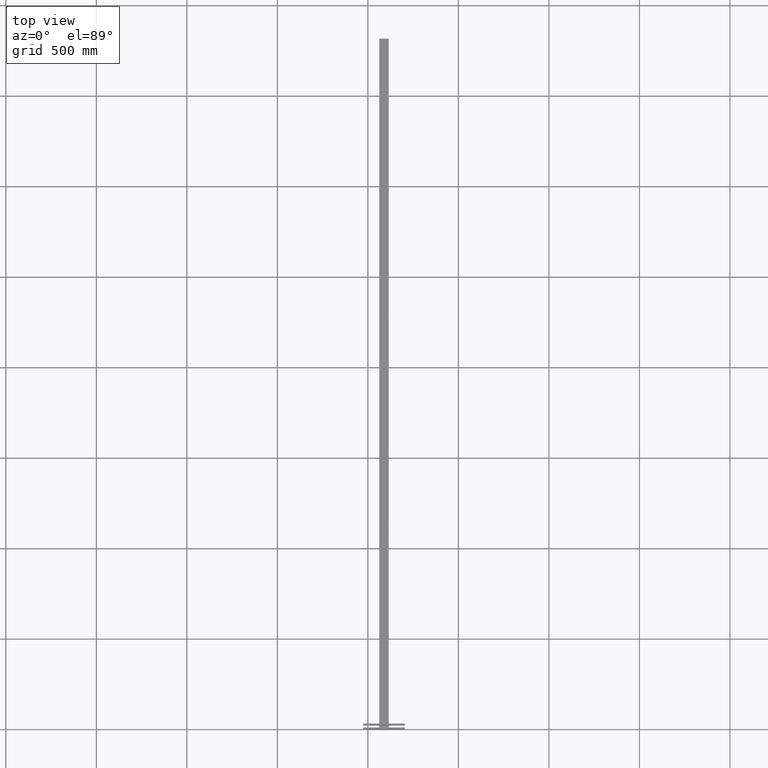
[diagram: clean part render]
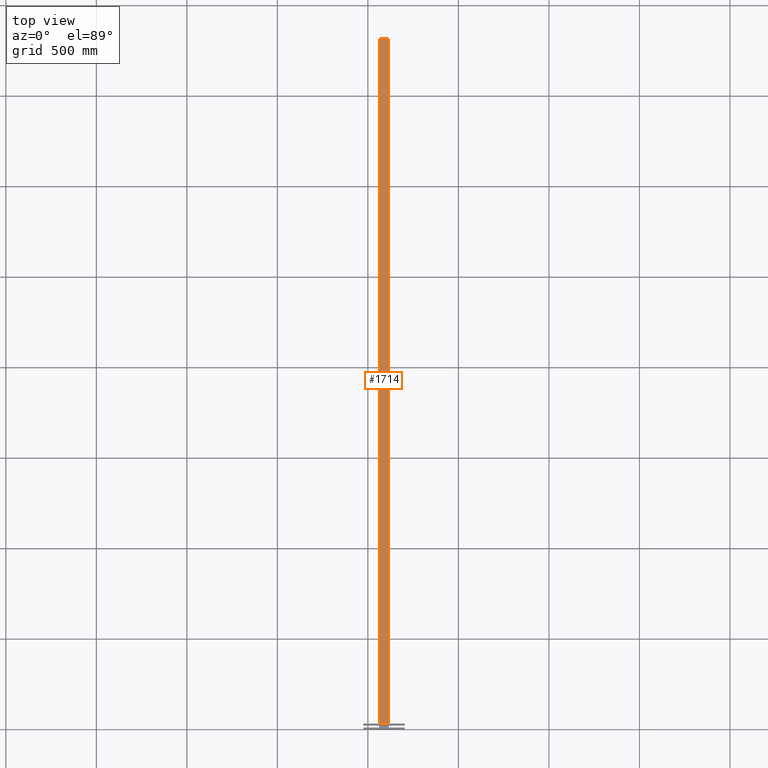
[diagram: same view with one face highlighted and labeled with its STEP entity id]
A machine part, top view. The second image highlights one B-rep face of the part: STEP entity #1714.
In plain terms, the highlighted planar face has unit normal (-0, -0, 1).
Its self-contained STEP definition (entity closure, byte-faithful):
#586=CARTESIAN_POINT('',(0.250000000000004,1.000000000000028,92.875000000000000));
#587=VERTEX_POINT('',#586);
#588=CARTESIAN_POINT('',(0.0,1.000000000000028,92.875000000000000));
#589=DIRECTION('',(0.0,-1.0,0.0));
#590=DIRECTION('',(-1.0,0.0,0.0));
#591=AXIS2_PLACEMENT_3D('',#588,#589,#590);
#592=CIRCLE('',#591,0.250000000000004);
#593=EDGE_CURVE('',#587,#587,#592,.T.);
#642=CARTESIAN_POINT('',(0.250000000000002,1.000000000000028,56.875000000000007));
#643=VERTEX_POINT('',#642);
#644=CARTESIAN_POINT('',(0.0,1.000000000000028,56.875000000000007));
#645=DIRECTION('',(0.0,-1.0,0.0));
#646=DIRECTION('',(-1.0,0.0,0.0));
#647=AXIS2_PLACEMENT_3D('',#644,#645,#646);
#648=CIRCLE('',#647,0.250000000000002);
#649=EDGE_CURVE('',#643,#643,#648,.T.);
#698=CARTESIAN_POINT('',(0.250000000000001,1.000000000000028,44.875000000000000));
#699=VERTEX_POINT('',#698);
#700=CARTESIAN_POINT('',(0.0,1.000000000000028,44.875000000000000));
#701=DIRECTION('',(0.0,-1.0,0.0));
#702=DIRECTION('',(-1.0,0.0,0.0));
#703=AXIS2_PLACEMENT_3D('',#700,#701,#702);
#704=CIRCLE('',#703,0.250000000000001);
#705=EDGE_CURVE('',#699,#699,#704,.T.);
#754=CARTESIAN_POINT('',(0.250000000000000,1.000000000000028,140.875000000000030));
#755=VERTEX_POINT('',#754);
#756=CARTESIAN_POINT('',(0.0,1.000000000000028,140.875000000000030));
#757=DIRECTION('',(0.0,-1.0,0.0));
#758=DIRECTION('',(-1.0,0.0,0.0));
#759=AXIS2_PLACEMENT_3D('',#756,#757,#758);
#760=CIRCLE('',#759,0.250000000000000);
#761=EDGE_CURVE('',#755,#755,#760,.T.);
#810=CARTESIAN_POINT('',(0.250000000000000,1.000000000000028,104.875000000000030));
#811=VERTEX_POINT('',#810);
#812=CARTESIAN_POINT('',(0.0,1.000000000000028,104.875000000000030));
#813=DIRECTION('',(0.0,-1.0,0.0));
#814=DIRECTION('',(-1.0,0.0,0.0));
#815=AXIS2_PLACEMENT_3D('',#812,#813,#814);
#816=CIRCLE('',#815,0.250000000000000);
#817=EDGE_CURVE('',#811,#811,#816,.T.);
#866=CARTESIAN_POINT('',(0.250000000000000,1.000000000000028,8.875000000000000));
#867=VERTEX_POINT('',#866);
#868=CARTESIAN_POINT('',(0.0,1.000000000000028,8.875000000000000));
#869=DIRECTION('',(0.0,-1.0,0.0));
#870=DIRECTION('',(-1.0,0.0,0.0));
#871=AXIS2_PLACEMENT_3D('',#868,#869,#870);
#872=CIRCLE('',#871,0.250000000000000);
#873=EDGE_CURVE('',#867,#867,#872,.T.);
#1638=CARTESIAN_POINT('',(-0.875000000000000,1.000000000000029,149.0));
#1639=VERTEX_POINT('',#1638);
#1647=CARTESIAN_POINT('',(-0.875000000000000,1.000000000000029,0.0));
#1648=VERTEX_POINT('',#1647);
#1649=CARTESIAN_POINT('',(-0.875000000000000,1.000000000000029,0.0));
#1650=DIRECTION('',(0.0,0.0,1.0));
#1651=VECTOR('',#1650,149.0);
#1652=LINE('',#1649,#1651);
#1653=EDGE_CURVE('',#1648,#1639,#1652,.T.);
#1666=CARTESIAN_POINT('',(-0.875000000000000,1.000000000000029,0.0));
#1667=DIRECTION('',(0.0,1.0,0.0));
#1668=DIRECTION('',(0.0,0.0,1.0));
#1669=AXIS2_PLACEMENT_3D('',#1666,#1667,#1668);
#1670=PLANE('',#1669);
#1671=CARTESIAN_POINT('',(0.875000000000000,1.000000000000029,149.0));
#1672=VERTEX_POINT('',#1671);
#1673=CARTESIAN_POINT('',(-0.875000000000000,1.000000000000029,149.0));
#1674=DIRECTION('',(1.0,0.0,0.0));
#1675=VECTOR('',#1674,1.750000000000000);
#1676=LINE('',#1673,#1675);
#1677=EDGE_CURVE('',#1639,#1672,#1676,.T.);
#1678=ORIENTED_EDGE('',*,*,#1677,.T.);
#1679=CARTESIAN_POINT('',(0.875000000000000,1.000000000000029,0.0));
#1680=VERTEX_POINT('',#1679);
#1681=CARTESIAN_POINT('',(0.875000000000000,1.000000000000029,0.0));
#1682=DIRECTION('',(0.0,0.0,1.0));
#1683=VECTOR('',#1682,149.0);
#1684=LINE('',#1681,#1683);
#1685=EDGE_CURVE('',#1680,#1672,#1684,.T.);
#1686=ORIENTED_EDGE('',*,*,#1685,.F.);
#1687=CARTESIAN_POINT('',(-0.875000000000000,1.000000000000029,0.0));
#1688=DIRECTION('',(1.0,0.0,0.0));
#1689=VECTOR('',#1688,1.750000000000000);
#1690=LINE('',#1687,#1689);
#1691=EDGE_CURVE('',#1648,#1680,#1690,.T.);
#1692=ORIENTED_EDGE('',*,*,#1691,.F.);
#1693=ORIENTED_EDGE('',*,*,#1653,.T.);
#1694=EDGE_LOOP('',(#1678,#1686,#1692,#1693));
#1695=FACE_OUTER_BOUND('',#1694,.T.);
#1696=ORIENTED_EDGE('',*,*,#593,.T.);
#1697=EDGE_LOOP('',(#1696));
#1698=FACE_BOUND('',#1697,.T.);
#1699=ORIENTED_EDGE('',*,*,#649,.T.);
#1700=EDGE_LOOP('',(#1699));
#1701=FACE_BOUND('',#1700,.T.);
#1702=ORIENTED_EDGE('',*,*,#705,.T.);
#1703=EDGE_LOOP('',(#1702));
#1704=FACE_BOUND('',#1703,.T.);
#1705=ORIENTED_EDGE('',*,*,#761,.T.);
#1706=EDGE_LOOP('',(#1705));
#1707=FACE_BOUND('',#1706,.T.);
#1708=ORIENTED_EDGE('',*,*,#817,.T.);
#1709=EDGE_LOOP('',(#1708));
#1710=FACE_BOUND('',#1709,.T.);
#1711=ORIENTED_EDGE('',*,*,#873,.T.);
#1712=EDGE_LOOP('',(#1711));
#1713=FACE_BOUND('',#1712,.T.);
#1714=ADVANCED_FACE('',(#1695,#1698,#1701,#1704,#1707,#1710,#1713),#1670,.T.);